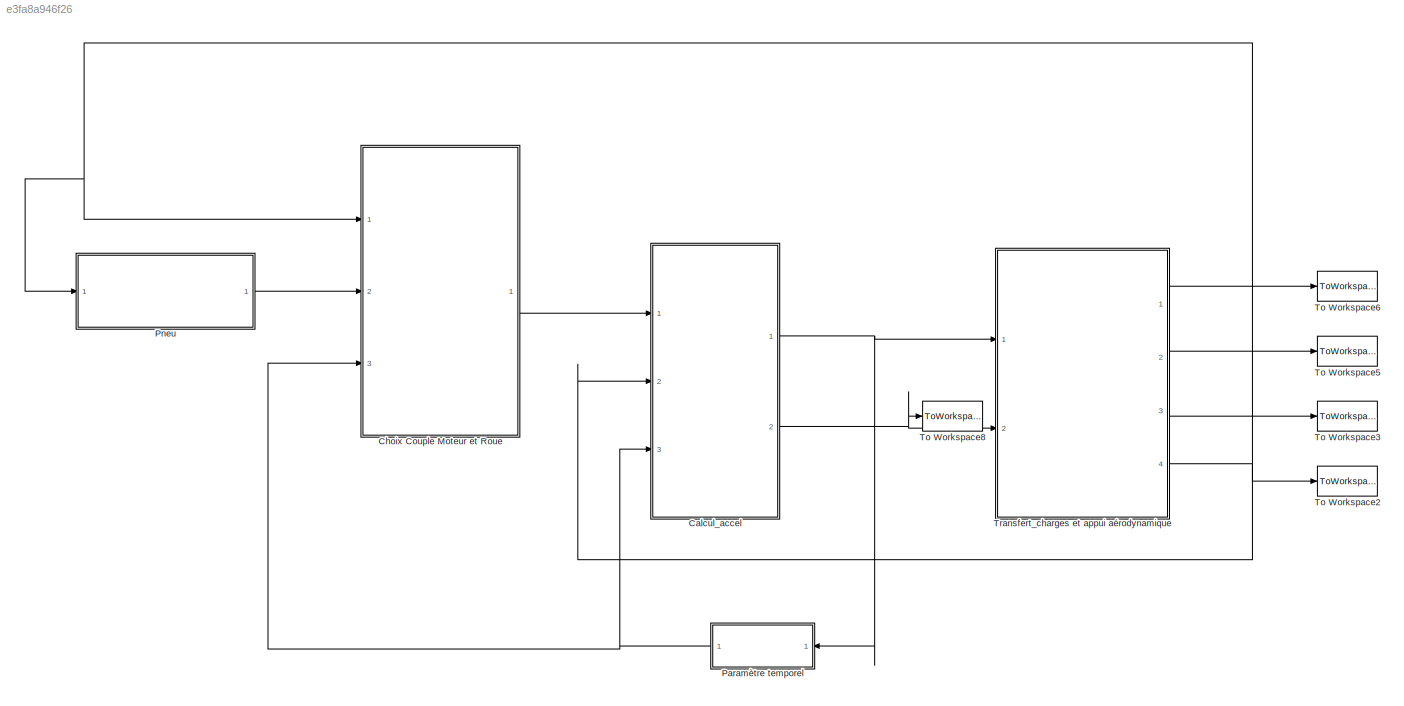
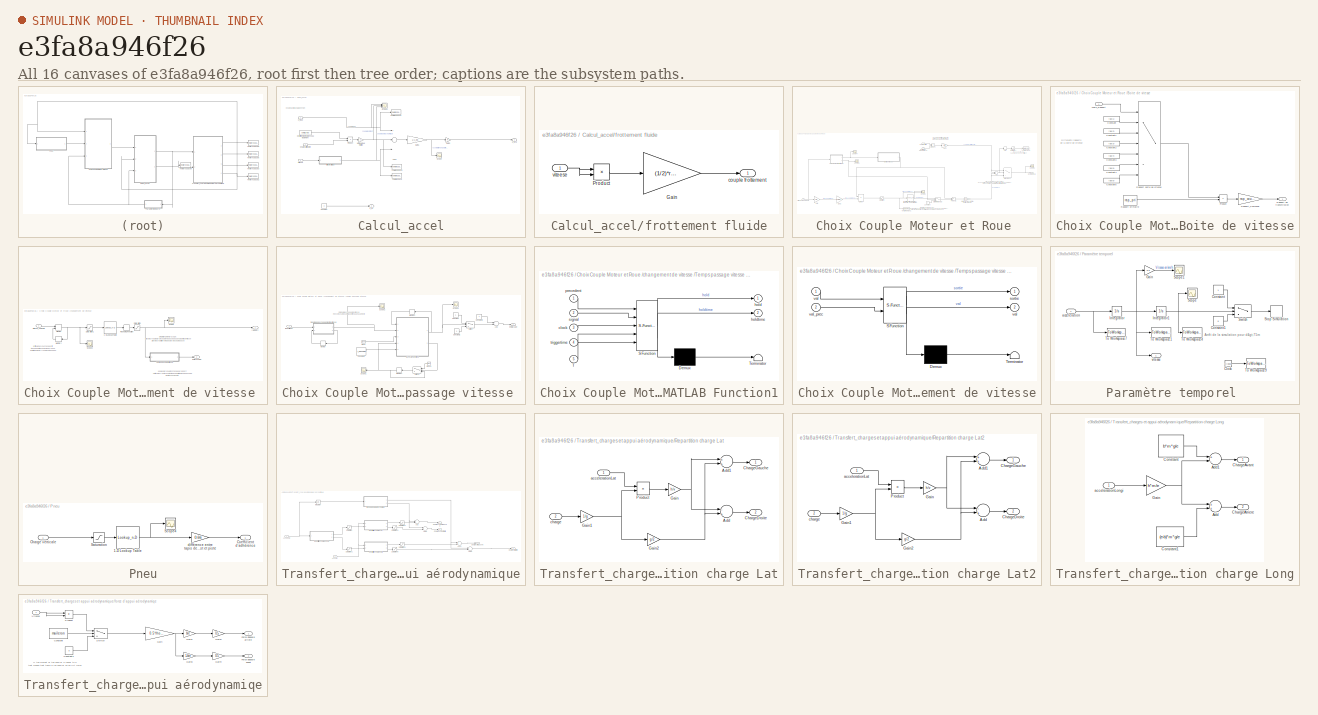
[diagram: thumbnail index - all 16 canvases of the model, root first then tree order]
MODEL slx_e3fa8a946f26
KIND model
CONFIG AbsTol = auto
CONFIG FixedStep = auto
CONFIG MaxStep = 0.01
CONFIG MinStep = auto
CONFIG RelTol = 1e-3
CONFIG SampleTimeConstraint = Unconstrained
CONFIG Solver = ode45
CONFIG SolverMode = Auto
CONFIG SolverName = ode45
CONFIG StartTime = 0.0
CONFIG StopTime = 7
BLOCK [SubSystem] Calcul_accel
  Ports = [3, 2]
  RequestExecContextInheritance = off
  Variant = off
BLOCK [Sum] Calcul_accel/Add3
  InputSameDT = off
  Inputs = +--
  OutDataTypeStr = Inherit: Inherit via internal rule
  Ports = [3, 1]
  SaturateOnIntegerOverflow = off
BLOCK [Inport] Calcul_accel/C_roue
  IconDisplay = Port number
BLOCK [Inport] Calcul_accel/Charge Arriere droit 
  IconDisplay = Port number
  Port = 2
BLOCK [Constant] Calcul_accel/Coefficient de résistance au roulement
  Value = coeff_roul
BLOCK [Constant] Calcul_accel/Constant
  Value = 0
BLOCK [Gain] Calcul_accel/Gain5
  Gain = R
  OutDataTypeStr = Inherit: Inherit via internal rule
  ParamDataTypeStr = Inherit: Inherit via internal rule
  SaturateOnIntegerOverflow = off
BLOCK [Gain] Calcul_accel/Gain6
  Gain = 1/J_eq
  OutDataTypeStr = Inherit: Inherit via internal rule
  ParamDataTypeStr = Inherit: Inherit via internal rule
  SaturateOnIntegerOverflow = off
BLOCK [Gain] Calcul_accel/Nbre de roue motrice
  Gain = 2
  OutDataTypeStr = Inherit: Inherit via internal rule
  ParamDataTypeStr = Inherit: Inherit via internal rule
  SaturateOnIntegerOverflow = off
BLOCK [Product] Calcul_accel/Product
  InputSameDT = off
  Inputs = **
  OutDataTypeStr = Inherit: Inherit via internal rule
  Ports = [2, 1]
  RndMeth = Floor
  SaturateOnIntegerOverflow = off
BLOCK [Scope] Calcul_accel/Scope
  Ports = [1]
  ScopeSpecificationString = Simulink.scopes.TimeScopeBlockCfg('CurrentConfiguration', extmgr.ConfigurationSet(extmgr.Configuration('Core','General UI',true),extmgr.Configuration('Core','Source UI',true),extmgr.Configuration('Sources','WiredSimulink',true),extmgr.Configuration('Visuals','Time Domain',true,'SerializedDisplays',{struct('MinYLimReal','-8.00356','MaxYLimReal','31.49873','YLabelReal','','MinYLimMag','0.00000','Max...<+1358ch>
BLOCK [Scope] Calcul_accel/Scope2
  NumInputPorts = 3
  Ports = [3]
  ScopeSpecificationString = Simulink.scopes.TimeScopeBlockCfg('CurrentConfiguration', extmgr.ConfigurationSet(extmgr.Configuration('Core','General UI',true),extmgr.Configuration('Core','Source UI',true),extmgr.Configuration('Sources','WiredSimulink',true,'DataLoggingVariableName','ScopeData7'),extmgr.Configuration('Visuals','Time Domain',true,'SerializedDisplays',{struct('MinYLimReal','-80.06257','MaxYLimReal','720.56312','Y...<+1446ch>
BLOCK [ToWorkspace] Calcul_accel/To Workspace
  FixptAsFi = on
  MaxDataPoints = inf
  Ports = [1]
  SampleTime = -1
  Save2DSignal = 3-D array (concatenate along third dimension)
  SaveFormat = Timeseries
  VariableName = couple_frottement
BLOCK [ToWorkspace] Calcul_accel/To Workspace1
  FixptAsFi = on
  MaxDataPoints = inf
  Ports = [1]
  SampleTime = -1
  Save2DSignal = 3-D array (concatenate along third dimension)
  SaveFormat = Timeseries
  VariableName = couple_roue
BLOCK [ToWorkspace] Calcul_accel/To Workspace2
  FixptAsFi = on
  MaxDataPoints = inf
  Ports = [1]
  SampleTime = -1
  Save2DSignal = 3-D array (concatenate along third dimension)
  SaveFormat = Timeseries
  VariableName = couple_resistant
BLOCK [Outport] Calcul_accel/a_lat
  IconDisplay = Port number
  Port = 2
BLOCK [Outport] Calcul_accel/a_long
  IconDisplay = Port number
BLOCK [SubSystem] Calcul_accel/frottement fluide
  Ports = [1, 1]
  RequestExecContextInheritance = off
  Variant = off
BLOCK [Gain] Calcul_accel/frottement fluide/Gain
  Gain = (1/2)*rho*Cx*S*R
  OutDataTypeStr = Inherit: Inherit via internal rule
  ParamDataTypeStr = Inherit: Inherit via internal rule
  SaturateOnIntegerOverflow = off
BLOCK [Product] Calcul_accel/frottement fluide/Product
  InputSameDT = off
  OutDataTypeStr = Inherit: Inherit via internal rule
  Ports = [2, 1]
  RndMeth = Floor
  SaturateOnIntegerOverflow = off
BLOCK [Outport] Calcul_accel/frottement fluide/couple frottement
  IconDisplay = Port number
BLOCK [Inport] Calcul_accel/frottement fluide/viteese
  IconDisplay = Port number
BLOCK [Inport] Calcul_accel/vitesse
  IconDisplay = Port number
  Port = 3
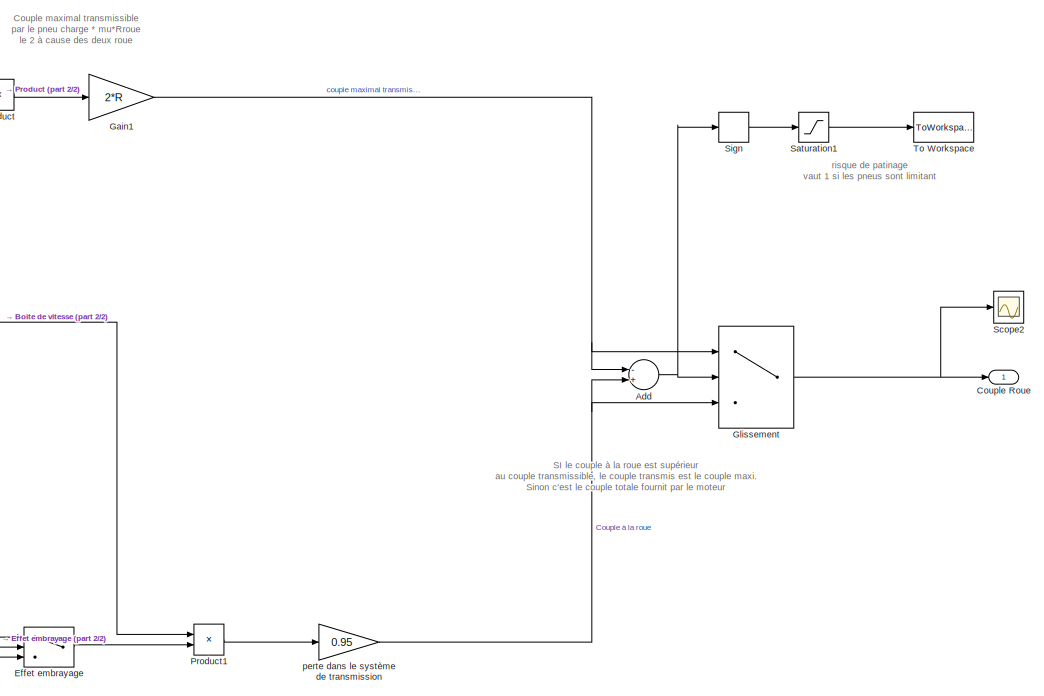
[diagram: Choix Couple Moteur et Roue  - part 1/2, right side, full height]
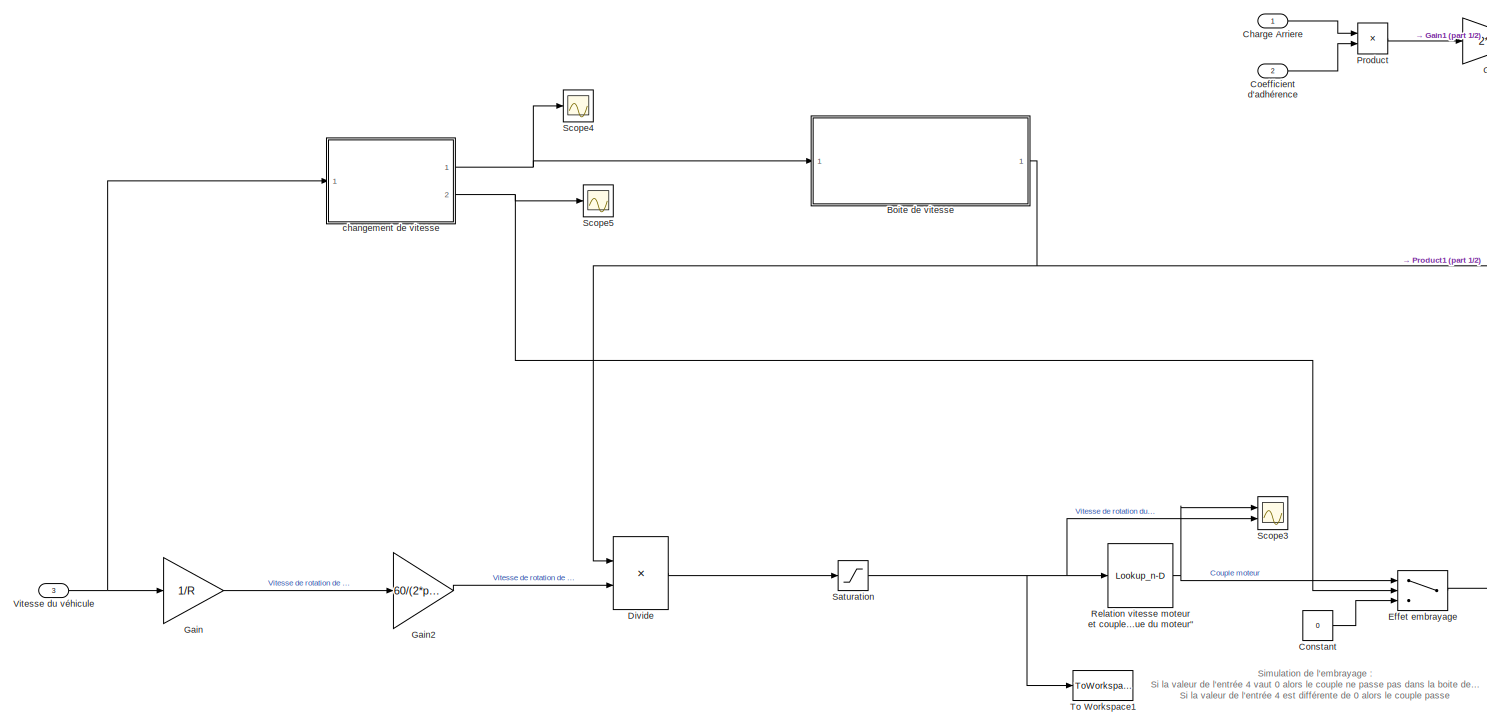
[diagram: Choix Couple Moteur et Roue  - part 2/2, left side, full height]
BLOCK [SubSystem] Choix Couple Moteur et Roue 
  Ports = [3, 1]
  RequestExecContextInheritance = off
  Variant = off
BLOCK [Sum] Choix Couple Moteur et Roue /Add
  InputSameDT = off
  Inputs = -+
  OutDataTypeStr = Inherit: Inherit via internal rule
  Ports = [2, 1]
  SaturateOnIntegerOverflow = off
BLOCK [SubSystem] Choix Couple Moteur et Roue /Boite de vitesse
  Ports = [1, 1]
  RequestExecContextInheritance = off
  Variant = off
BLOCK [Constant] Choix Couple Moteur et Roue /Boite de vitesse/Constant
  Value = rap(1)
BLOCK [Constant] Choix Couple Moteur et Roue /Boite de vitesse/Constant1
  Value = rap(2)
BLOCK [Constant] Choix Couple Moteur et Roue /Boite de vitesse/Constant2
  Value = rap(3)
BLOCK [Constant] Choix Couple Moteur et Roue /Boite de vitesse/Constant3
  Value = rap(4)
BLOCK [Constant] Choix Couple Moteur et Roue /Boite de vitesse/Constant4
  Value = rap(5)
BLOCK [Constant] Choix Couple Moteur et Roue /Boite de vitesse/Constant5
  Value = rap(6)
BLOCK [Product] Choix Couple Moteur et Roue /Boite de vitesse/Product
  InputSameDT = off
  OutDataTypeStr = Inherit: Inherit via internal rule
  Ports = [2, 1]
  RndMeth = Floor
  SaturateOnIntegerOverflow = off
BLOCK [MultiPortSwitch] Choix Couple Moteur et Roue /Boite de vitesse/Rapport boite de vitesse
  InputSameDT = off
  Inputs = 6
  Ports = [7, 1]
  SaturateOnIntegerOverflow = off
BLOCK [Outport] Choix Couple Moteur et Roue /Boite de vitesse/Rapport de transmission
  IconDisplay = Port number
BLOCK [Constant] Choix Couple Moteur et Roue /Boite de vitesse/Rapport primaire
  Value = rap_pri
BLOCK [Gain] Choix Couple Moteur et Roue /Boite de vitesse/Rapport_Couronne
  Gain = rap_couronne
  OutDataTypeStr = Inherit: Inherit via internal rule
  ParamDataTypeStr = Inherit: Inherit via internal rule
  SaturateOnIntegerOverflow = off
BLOCK [Inport] Choix Couple Moteur et Roue /Boite de vitesse/choix_Rapport
  IconDisplay = Port number
BLOCK [Inport] Choix Couple Moteur et Roue /Charge Arriere
  IconDisplay = Port number
BLOCK [Inport] Choix Couple Moteur et Roue /Coefficient d'adhérence 
  IconDisplay = Port number
  Port = 2
BLOCK [Constant] Choix Couple Moteur et Roue /Constant
  Value = 0
BLOCK [Outport] Choix Couple Moteur et Roue /Couple Roue
  IconDisplay = Port number
BLOCK [Product] Choix Couple Moteur et Roue /Divide
  InputSameDT = off
  Inputs = /*
  OutDataTypeStr = Inherit: Inherit via internal rule
  Ports = [2, 1]
  RndMeth = Floor
  SaturateOnIntegerOverflow = off
BLOCK [Switch] Choix Couple Moteur et Roue /Effet embrayage
  Criteria = u2 > Threshold
  InputSameDT = off
  SaturateOnIntegerOverflow = off
BLOCK [Gain] Choix Couple Moteur et Roue /Gain
  Gain = 1/R
  OutDataTypeStr = Inherit: Inherit via internal rule
  ParamDataTypeStr = Inherit: Inherit via internal rule
  SaturateOnIntegerOverflow = off
BLOCK [Gain] Choix Couple Moteur et Roue /Gain1
  Gain = 2*R
  OutDataTypeStr = Inherit: Inherit via internal rule
  ParamDataTypeStr = Inherit: Inherit via internal rule
  SaturateOnIntegerOverflow = off
BLOCK [Gain] Choix Couple Moteur et Roue /Gain2
  Gain = 60/(2*pi)
  OutDataTypeStr = Inherit: Inherit via internal rule
  ParamDataTypeStr = Inherit: Inherit via internal rule
  SaturateOnIntegerOverflow = off
BLOCK [Switch] Choix Couple Moteur et Roue /Glissement
  Criteria = u2 > Threshold
  InputSameDT = off
  SaturateOnIntegerOverflow = off
BLOCK [Product] Choix Couple Moteur et Roue /Product
  InputSameDT = off
  OutDataTypeStr = Inherit: Inherit via internal rule
  Ports = [2, 1]
  RndMeth = Floor
  SaturateOnIntegerOverflow = off
BLOCK [Product] Choix Couple Moteur et Roue /Product1
  InputSameDT = off
  Inputs = /*
  OutDataTypeStr = Inherit: Inherit via internal rule
  Ports = [2, 1]
  RndMeth = Floor
  SaturateOnIntegerOverflow = off
BLOCK [Lookup_n-D] Choix Couple Moteur et Roue /Relation vitesse moteur et couple moteur "Caractéristique du moteur"
  BreakpointsForDimension1 = regime
  InternalRulePriority = Speed
  NumberOfTableDimensions = 1
  Ports = [1, 1]
  RndMeth = Simplest
  Table = C_mot
BLOCK [Saturate] Choix Couple Moteur et Roue /Saturation
  InputPortMap = u0
  LowerLimit = reg_patinage
  Ports = [1, 1]
  UpperLimit = reg_rupteur
BLOCK [Saturate] Choix Couple Moteur et Roue /Saturation1
  InputPortMap = u0
  LowerLimit = 0
  Ports = [1, 1]
  UpperLimit = 1
BLOCK [Scope] Choix Couple Moteur et Roue /Scope2
  Ports = [1]
  ScopeSpecificationString = Simulink.scopes.TimeScopeBlockCfg('CurrentConfiguration', extmgr.ConfigurationSet(extmgr.Configuration('Core','General UI',true),extmgr.Configuration('Core','Source UI',true),extmgr.Configuration('Sources','WiredSimulink',true,'DataLoggingVariableName','ScopeData2'),extmgr.Configuration('Visuals','Time Domain',true,'SerializedDisplays',{struct('MinYLimReal','-80.06257','MaxYLimReal','720.56312','Y...<+1411ch>
BLOCK [Scope] Choix Couple Moteur et Roue /Scope3
  NumInputPorts = 2
  Ports = [2]
  ScopeSpecificationString = Simulink.scopes.TimeScopeBlockCfg('CurrentConfiguration', extmgr.ConfigurationSet(extmgr.Configuration('Core','General UI',true),extmgr.Configuration('Core','Source UI',true),extmgr.Configuration('Sources','WiredSimulink',true,'DataLoggingVariableName','ScopeData4'),extmgr.Configuration('Visuals','Time Domain',true,'SerializedDisplays',{struct('MinYLimReal','-1532.31614','MaxYLimReal','14184.22096...<+1460ch>
BLOCK [Scope] Choix Couple Moteur et Roue /Scope4
  Ports = [1]
  ScopeSpecificationString = Simulink.scopes.TimeScopeBlockCfg('CurrentConfiguration', extmgr.ConfigurationSet(extmgr.Configuration('Core','General UI',true),extmgr.Configuration('Core','Source UI',true),extmgr.Configuration('Sources','WiredSimulink',true,'DataLoggingVariableName','ScopeData1'),extmgr.Configuration('Visuals','Time Domain',true,'SerializedDisplays',{struct('MinYLimReal','0.625','MaxYLimReal','4.375','YLabelRea...<+1365ch>
BLOCK [Scope] Choix Couple Moteur et Roue /Scope5
  Ports = [1]
  ScopeSpecificationString = Simulink.scopes.TimeScopeBlockCfg('CurrentConfiguration', extmgr.ConfigurationSet(extmgr.Configuration('Core','General UI',true),extmgr.Configuration('Core','Source UI',true),extmgr.Configuration('Sources','WiredSimulink',true,'DataLoggingVariableName','ScopeData2'),extmgr.Configuration('Visuals','Time Domain',true,'SerializedDisplays',{struct('MinYLimReal','-0.125','MaxYLimReal','1.125','YLabelRe...<+1371ch>
BLOCK [Signum] Choix Couple Moteur et Roue /Sign
BLOCK [ToWorkspace] Choix Couple Moteur et Roue /To Workspace
  FixptAsFi = on
  MaxDataPoints = inf
  Ports = [1]
  SampleTime = -1
  Save2DSignal = 3-D array (concatenate along third dimension)
  SaveFormat = Timeseries
  VariableName = patinage
BLOCK [ToWorkspace] Choix Couple Moteur et Roue /To Workspace1
  FixptAsFi = on
  MaxDataPoints = inf
  Ports = [1]
  SampleTime = -1
  Save2DSignal = 3-D array (concatenate along third dimension)
  SaveFormat = Timeseries
  VariableName = regime_moteur
BLOCK [Inport] Choix Couple Moteur et Roue /Vitesse du véhicule
  IconDisplay = Port number
  Port = 3
BLOCK [SubSystem] Choix Couple Moteur et Roue /changement de vitesse 
  Ports = [1, 2]
  RequestExecContextInheritance = off
  Variant = off
BLOCK [Lookup_n-D] Choix Couple Moteur et Roue /changement de vitesse /1-D Lookup Table
  BreakpointsForDimension1 = v_passage
  InternalRulePriority = Speed
  NumberOfTableDimensions = 1
  Ports = [1, 1]
  RndMeth = Simplest
  Table = rapport
BLOCK [Memory] Choix Couple Moteur et Roue /changement de vitesse /Memory
BLOCK [MinMax] Choix Couple Moteur et Roue /changement de vitesse /MinMax
  Function = max
  InputSameDT = off
  Inputs = 2
  Ports = [2, 1]
  SaturateOnIntegerOverflow = off
BLOCK [Rounding] Choix Couple Moteur et Roue /changement de vitesse /Rounding Function
BLOCK [Saturate] Choix Couple Moteur et Roue /changement de vitesse /Saturation
  InputPortMap = u0
  LowerLimit = 1
  Ports = [1, 1]
  UpperLimit = rapport_max
BLOCK [Saturate] Choix Couple Moteur et Roue /changement de vitesse /Saturation1
  InputPortMap = u0
  LowerLimit = 0
  Ports = [1, 1]
  UpperLimit = inf
BLOCK [Scope] Choix Couple Moteur et Roue /changement de vitesse /Scope
  Ports = [1]
  ScopeSpecificationString = Simulink.scopes.TimeScopeBlockCfg('CurrentConfiguration', extmgr.ConfigurationSet(extmgr.Configuration('Core','General UI',true),extmgr.Configuration('Core','Source UI',true),extmgr.Configuration('Sources','WiredSimulink',true,'DataLoggingVariableName','ScopeData1'),extmgr.Configuration('Visuals','Time Domain',true,'SerializedDisplays',{struct('MinYLimReal','0.625','MaxYLimReal','4.375','YLabelRea...<+1382ch>
BLOCK [Scope] Choix Couple Moteur et Roue /changement de vitesse /Scope2
  Ports = [1]
  ScopeSpecificationString = Simulink.scopes.TimeScopeBlockCfg('CurrentConfiguration', extmgr.ConfigurationSet(extmgr.Configuration('Core','General UI',true),extmgr.Configuration('Core','Source UI',true),extmgr.Configuration('Sources','WiredSimulink',true,'DataLoggingVariableName','ScopeData5'),extmgr.Configuration('Visuals','Time Domain',true,'SerializedDisplays',{struct('MinYLimReal','-4.41317','MaxYLimReal','39.71854','YLa...<+1413ch>
BLOCK [SubSystem] Choix Couple Moteur et Roue /changement de vitesse /Temps passage vitesse 
  Ports = [1, 1]
  RequestExecContextInheritance = off
  Variant = off
BLOCK [Sum] Choix Couple Moteur et Roue /changement de vitesse /Temps passage vitesse /Add
  InputSameDT = off
  Inputs = +-
  OutDataTypeStr = Inherit: Inherit via internal rule
  Ports = [2, 1]
  SaturateOnIntegerOverflow = off
BLOCK [Clock] Choix Couple Moteur et Roue /changement de vitesse /Temps passage vitesse /Clock
BLOCK [Clock] Choix Couple Moteur et Roue /changement de vitesse /Temps passage vitesse /Clock1
BLOCK [Constant] Choix Couple Moteur et Roue /changement de vitesse /Temps passage vitesse /Constant
BLOCK [Constant] Choix Couple Moteur et Roue /changement de vitesse /Temps passage vitesse /Constant1
  Value = 0
BLOCK [Constant] Choix Couple Moteur et Roue /changement de vitesse /Temps passage vitesse /Constant2
  Value = t_passage
BLOCK [Constant] Choix Couple Moteur et Roue /changement de vitesse /Temps passage vitesse /Constant3
BLOCK [SubSystem] Choix Couple Moteur et Roue /changement de vitesse /Temps passage vitesse /MATLAB Function1
  ErrorFcn = Stateflow.Translate.translate
  PermitHierarchicalResolution = ExplicitOnly
  Ports = [5, 2]
  RequestExecContextInheritance = off
  SFBlockType = MATLAB Function
  TreatAsAtomicUnit = on
  Variant = off
BLOCK [Demux] Choix Couple Moteur et Roue /changement de vitesse /Temps passage vitesse /MATLAB Function1/ Demux 
  Outputs = 1
  Ports = [1, 1]
BLOCK [S-Function] Choix Couple Moteur et Roue /changement de vitesse /Temps passage vitesse /MATLAB Function1/ SFunction 
  EnableBusSupport = on
  FunctionName = sf_sfun
  PortCounts = [5 3]
  Ports = [5, 3]
  SFunctionDeploymentMode = off
  Tag = Stateflow S-Function Accel_model 1
BLOCK [Terminator] Choix Couple Moteur et Roue /changement de vitesse /Temps passage vitesse /MATLAB Function1/ Terminator 
BLOCK [Inport] Choix Couple Moteur et Roue /changement de vitesse /Temps passage vitesse /MATLAB Function1/T
  IconDisplay = Port number
  Port = 5
BLOCK [Inport] Choix Couple Moteur et Roue /changement de vitesse /Temps passage vitesse /MATLAB Function1/clock
  IconDisplay = Port number
  Port = 3
BLOCK [Outport] Choix Couple Moteur et Roue /changement de vitesse /Temps passage vitesse /MATLAB Function1/hold
  IconDisplay = Port number
BLOCK [Outport] Choix Couple Moteur et Roue /changement de vitesse /Temps passage vitesse /MATLAB Function1/holdtime
  IconDisplay = Port number
  Port = 2
BLOCK [Inport] Choix Couple Moteur et Roue /changement de vitesse /Temps passage vitesse /MATLAB Function1/precedent
  IconDisplay = Port number
BLOCK [Inport] Choix Couple Moteur et Roue /changement de vitesse /Temps passage vitesse /MATLAB Function1/signal
  IconDisplay = Port number
  Port = 2
BLOCK [Inport] Choix Couple Moteur et Roue /changement de vitesse /Temps passage vitesse /MATLAB Function1/triggertime
  IconDisplay = Port number
  Port = 4
BLOCK [Memory] Choix Couple Moteur et Roue /changement de vitesse /Temps passage vitesse /Memory
  X0 = 1
BLOCK [Memory] Choix Couple Moteur et Roue /changement de vitesse /Temps passage vitesse /Memory1
BLOCK [Memory] Choix Couple Moteur et Roue /changement de vitesse /Temps passage vitesse /Memory2
BLOCK [SubSystem] Choix Couple Moteur et Roue /changement de vitesse /Temps passage vitesse /Reperage des changement de vitesse
  ErrorFcn = Stateflow.Translate.translate
  PermitHierarchicalResolution = ExplicitOnly
  Ports = [2, 2]
  RequestExecContextInheritance = off
  SFBlockType = MATLAB Function
  TreatAsAtomicUnit = on
  Variant = off
BLOCK [Demux] Choix Couple Moteur et Roue /changement de vitesse /Temps passage vitesse /Reperage des changement de vitesse/ Demux 
  Outputs = 1
  Ports = [1, 1]
BLOCK [S-Function] Choix Couple Moteur et Roue /changement de vitesse /Temps passage vitesse /Reperage des changement de vitesse/ SFunction 
  EnableBusSupport = on
  FunctionName = sf_sfun
  PortCounts = [2 3]
  Ports = [2, 3]
  SFunctionDeploymentMode = off
  Tag = Stateflow S-Function Accel_model 2
BLOCK [Terminator] Choix Couple Moteur et Roue /changement de vitesse /Temps passage vitesse /Reperage des changement de vitesse/ Terminator 
BLOCK [Outport] Choix Couple Moteur et Roue /changement de vitesse /Temps passage vitesse /Reperage des changement de vitesse/sortie
  IconDisplay = Port number
BLOCK [Outport] Choix Couple Moteur et Roue /changement de vitesse /Temps passage vitesse /Reperage des changement de vitesse/val
  IconDisplay = Port number
  Port = 2
BLOCK [Inport] Choix Couple Moteur et Roue /changement de vitesse /Temps passage vitesse /Reperage des changement de vitesse/val 
  IconDisplay = Port number
BLOCK [Inport] Choix Couple Moteur et Roue /changement de vitesse /Temps passage vitesse /Reperage des changement de vitesse/val_prec
  IconDisplay = Port number
  Port = 2
BLOCK [Scope] Choix Couple Moteur et Roue /changement de vitesse /Temps passage vitesse /Scope1
  Ports = [1]
  ScopeSpecificationString = Simulink.scopes.TimeScopeBlockCfg('CurrentConfiguration', extmgr.ConfigurationSet(extmgr.Configuration('Core','General UI',true),extmgr.Configuration('Core','Source UI',true),extmgr.Configuration('Sources','WiredSimulink',true,'DataLoggingVariableName','ScopeData1'),extmgr.Configuration('Visuals','Time Domain',true,'SerializedDisplays',{struct('MinYLimReal','-0.375','MaxYLimReal','3.375','YLabelRe...<+1387ch>
BLOCK [Scope] Choix Couple Moteur et Roue /changement de vitesse /Temps passage vitesse /Scope2
  Ports = [1]
  ScopeSpecificationString = Simulink.scopes.TimeScopeBlockCfg('CurrentConfiguration', extmgr.ConfigurationSet(extmgr.Configuration('Core','General UI',true),extmgr.Configuration('Core','Source UI',true),extmgr.Configuration('Sources','WiredSimulink',true,'DataLoggingVariableName','ScopeData2'),extmgr.Configuration('Visuals','Time Domain',true,'SerializedDisplays',{struct('MinYLimReal','-0.125','MaxYLimReal','1.125','YLabelRe...<+1389ch>
BLOCK [Scope] Choix Couple Moteur et Roue /changement de vitesse /Temps passage vitesse /Scope3
  Ports = [1]
  ScopeSpecificationString = Simulink.scopes.TimeScopeBlockCfg('CurrentConfiguration', extmgr.ConfigurationSet(extmgr.Configuration('Core','General UI',true),extmgr.Configuration('Core','Source UI',true),extmgr.Configuration('Sources','WiredSimulink',true,'DataLoggingVariableName','ScopeData3'),extmgr.Configuration('Visuals','Time Domain',true,'SerializedDisplays',{struct('MinYLimReal','-0.125','MaxYLimReal','1.125','YLabelRe...<+1368ch>
BLOCK [Switch] Choix Couple Moteur et Roue /changement de vitesse /Temps passage vitesse /Switch
  InputSameDT = off
  SaturateOnIntegerOverflow = off
  Threshold = 1
BLOCK [Switch] Choix Couple Moteur et Roue /changement de vitesse /Temps passage vitesse /Switch1
  InputSameDT = off
  SaturateOnIntegerOverflow = off
  Threshold = 1
BLOCK [Outport] Choix Couple Moteur et Roue /changement de vitesse /Temps passage vitesse /embrayage
  IconDisplay = Port number
BLOCK [Inport] Choix Couple Moteur et Roue /changement de vitesse /Temps passage vitesse /rapport ideal
  IconDisplay = Port number
BLOCK [Outport] Choix Couple Moteur et Roue /changement de vitesse /embrayage 
  IconDisplay = Port number
  Port = 2
BLOCK [Outport] Choix Couple Moteur et Roue /changement de vitesse /rapport
  IconDisplay = Port number
BLOCK [Inport] Choix Couple Moteur et Roue /changement de vitesse /vitesse_vehicule 
  IconDisplay = Port number
BLOCK [Gain] Choix Couple Moteur et Roue /perte dans le système de transmission
  Gain = 0.95
  OutDataTypeStr = Inherit: Inherit via internal rule
  ParamDataTypeStr = Inherit: Inherit via internal rule
  SaturateOnIntegerOverflow = off
BLOCK [SubSystem] Paramètre temporel 
  Ports = [1, 1]
  RequestExecContextInheritance = off
  Variant = off
BLOCK [Clock] Paramètre temporel /Clock
BLOCK [Constant] Paramètre temporel /Constant
BLOCK [Constant] Paramètre temporel /Constant1
  Value = 0
BLOCK [Gain] Paramètre temporel /Gain
  Gain = 3.6
  OutDataTypeStr = Inherit: Inherit via internal rule
  ParamDataTypeStr = Inherit: Inherit via internal rule
  SaturateOnIntegerOverflow = off
BLOCK [Integrator] Paramètre temporel /Integrator
  InitialCondition = vitesse_initiale
  Ports = [1, 1]
BLOCK [Integrator] Paramètre temporel /Integrator1
  InitialCondition = position_initale
  Ports = [1, 1]
BLOCK [Scope] Paramètre temporel /Scope
  Ports = [1]
  ScopeSpecificationString = Simulink.scopes.TimeScopeBlockCfg('CurrentConfiguration', extmgr.ConfigurationSet(extmgr.Configuration('Core','General UI',true),extmgr.Configuration('Core','Source UI',true),extmgr.Configuration('Sources','WiredSimulink',true,'DataLoggingVariableName','ScopeData1'),extmgr.Configuration('Visuals','Time Domain',true,'SerializedDisplays',{struct('MinYLimReal','-9.375','MaxYLimReal','84.375','YLabelR...<+1362ch>
BLOCK [Scope] Paramètre temporel /Scope1
  Ports = [1]
  ScopeSpecificationString = Simulink.scopes.TimeScopeBlockCfg('CurrentConfiguration', extmgr.ConfigurationSet(extmgr.Configuration('Core','General UI',true),extmgr.Configuration('Core','Source UI',true),extmgr.Configuration('Sources','WiredSimulink',true,'DataLoggingVariableName','ScopeData2'),extmgr.Configuration('Visuals','Time Domain',true,'SerializedDisplays',{struct('MinYLimReal','-13.13589','MaxYLimReal','118.223','YLa...<+1377ch>
BLOCK [Stop] Paramètre temporel /Stop Simulation
BLOCK [Switch] Paramètre temporel /Switch
  Criteria = u2 > Threshold
  InputSameDT = off
  SaturateOnIntegerOverflow = off
  Threshold = 75
BLOCK [ToWorkspace] Paramètre temporel /To Workspace1
  FixptAsFi = on
  MaxDataPoints = inf
  Ports = [1]
  SampleTime = -1
  Save2DSignal = 3-D array (concatenate along third dimension)
  SaveFormat = Timeseries
  VariableName = Vitesse
BLOCK [ToWorkspace] Paramètre temporel /To Workspace4
  FixptAsFi = on
  MaxDataPoints = inf
  Ports = [1]
  SampleTime = -1
  Save2DSignal = 3-D array (concatenate along third dimension)
  SaveFormat = Timeseries
  VariableName = Distance
BLOCK [ToWorkspace] Paramètre temporel /To Workspace7
  FixptAsFi = on
  MaxDataPoints = inf
  Ports = [1]
  SampleTime = -1
  Save2DSignal = 3-D array (concatenate along third dimension)
  SaveFormat = Timeseries
  VariableName = AccLong
BLOCK [ToWorkspace] Paramètre temporel /To Workspace9
  FixptAsFi = on
  MaxDataPoints = inf
  Ports = [1]
  SampleTime = -1
  Save2DSignal = 3-D array (concatenate along third dimension)
  VariableName = time
BLOCK [Inport] Paramètre temporel /acceleration
  IconDisplay = Port number
BLOCK [Outport] Paramètre temporel /vitesse 
  IconDisplay = Port number
BLOCK [SubSystem] Pneu
  Ports = [1, 1]
  RequestExecContextInheritance = off
  Variant = off
BLOCK [Lookup_n-D] Pneu/1-D Lookup Table
  BreakpointsForDimension1 = ChargePneu
  InternalRulePriority = Speed
  NumberOfTableDimensions = 1
  Ports = [1, 1]
  RndMeth = Simplest
  Table = MuLong
BLOCK [Inport] Pneu/Charge verticale
  IconDisplay = Port number
BLOCK [Outport] Pneu/Coefficient d'adhérence
  IconDisplay = Port number
BLOCK [Saturate] Pneu/Saturation
  InputPortMap = u0
  LowerLimit = charge_min
  Ports = [1, 1]
  UpperLimit = charge_max
BLOCK [Scope] Pneu/Scope4
  Ports = [1]
  ScopeSpecificationString = Simulink.scopes.TimeScopeBlockCfg('CurrentConfiguration', extmgr.ConfigurationSet(extmgr.Configuration('Core','General UI',true),extmgr.Configuration('Core','Source UI',true),extmgr.Configuration('Sources','WiredSimulink',true,'DataLoggingVariableName','ScopeData3'),extmgr.Configuration('Visuals','Time Domain',true,'SerializedDisplays',{struct('MinYLimReal','2.44269','MaxYLimReal','2.59303','YLabe...<+1373ch>
BLOCK [Gain] Pneu/différence entre tapis de test et piste
  Gain = 0.66
  OutDataTypeStr = Inherit: Inherit via internal rule
  ParamDataTypeStr = Inherit: Inherit via internal rule
  SaturateOnIntegerOverflow = off
BLOCK [ToWorkspace] To Workspace2
  FixptAsFi = on
  MaxDataPoints = inf
  Ports = [1]
  SampleTime = -1
  Save2DSignal = 3-D array (concatenate along third dimension)
  SaveFormat = Timeseries
  VariableName = ChargeArrDroit
BLOCK [ToWorkspace] To Workspace3
  FixptAsFi = on
  MaxDataPoints = inf
  Ports = [1]
  SampleTime = -1
  Save2DSignal = 3-D array (concatenate along third dimension)
  SaveFormat = Timeseries
  VariableName = ChargeArrGauche
BLOCK [ToWorkspace] To Workspace5
  FixptAsFi = on
  MaxDataPoints = inf
  Ports = [1]
  SampleTime = -1
  Save2DSignal = 3-D array (concatenate along third dimension)
  SaveFormat = Timeseries
  VariableName = ChargeAvantDroit
BLOCK [ToWorkspace] To Workspace6
  FixptAsFi = on
  MaxDataPoints = inf
  Ports = [1]
  SampleTime = -1
  Save2DSignal = 3-D array (concatenate along third dimension)
  SaveFormat = Timeseries
  VariableName = ChargeAvantGauche
BLOCK [ToWorkspace] To Workspace8
  FixptAsFi = on
  MaxDataPoints = inf
  Ports = [1]
  SampleTime = -1
  Save2DSignal = 3-D array (concatenate along third dimension)
  SaveFormat = Timeseries
  VariableName = AccLat
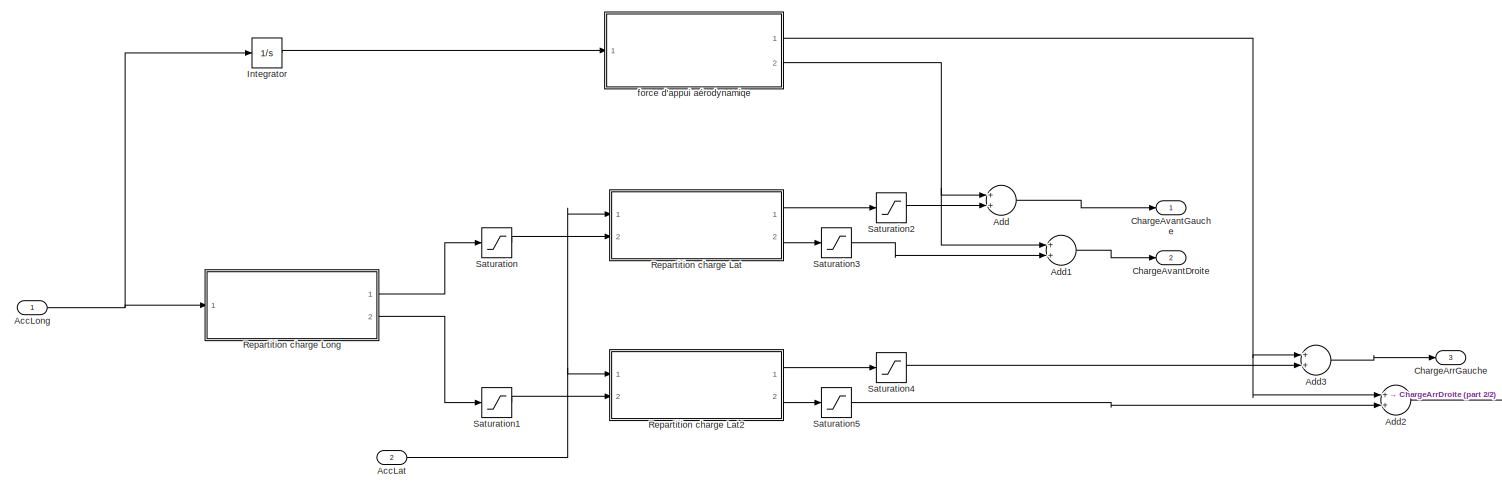
[diagram: Transfert_charges et appui aérodynamique - part 1/2, most of the canvas]
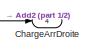
[diagram: Transfert_charges et appui aérodynamique - part 2/2, bottom right region]
BLOCK [SubSystem] Transfert_charges et appui aérodynamique
  Ports = [2, 4]
  RequestExecContextInheritance = off
  Variant = off
BLOCK [Inport] Transfert_charges et appui aérodynamique/AccLat
  IconDisplay = Port number
  Port = 2
BLOCK [Inport] Transfert_charges et appui aérodynamique/AccLong
  IconDisplay = Port number
BLOCK [Sum] Transfert_charges et appui aérodynamique/Add
  InputSameDT = off
  OutDataTypeStr = Inherit: Inherit via internal rule
  Ports = [2, 1]
  SaturateOnIntegerOverflow = off
BLOCK [Sum] Transfert_charges et appui aérodynamique/Add1
  InputSameDT = off
  OutDataTypeStr = Inherit: Inherit via internal rule
  Ports = [2, 1]
  SaturateOnIntegerOverflow = off
BLOCK [Sum] Transfert_charges et appui aérodynamique/Add2
  InputSameDT = off
  OutDataTypeStr = Inherit: Inherit via internal rule
  Ports = [2, 1]
  SaturateOnIntegerOverflow = off
BLOCK [Sum] Transfert_charges et appui aérodynamique/Add3
  InputSameDT = off
  OutDataTypeStr = Inherit: Inherit via internal rule
  Ports = [2, 1]
  SaturateOnIntegerOverflow = off
BLOCK [Outport] Transfert_charges et appui aérodynamique/ChargeArrDroite
  IconDisplay = Port number
  Port = 4
BLOCK [Outport] Transfert_charges et appui aérodynamique/ChargeArrGauche
  IconDisplay = Port number
  Port = 3
BLOCK [Outport] Transfert_charges et appui aérodynamique/ChargeAvantDroite
  IconDisplay = Port number
  Port = 2
BLOCK [Outport] Transfert_charges et appui aérodynamique/ChargeAvantGauche
  IconDisplay = Port number
BLOCK [Integrator] Transfert_charges et appui aérodynamique/Integrator
  InitialCondition = vitesse_initiale
  Ports = [1, 1]
BLOCK [SubSystem] Transfert_charges et appui aérodynamique/Repartition charge Lat
  Ports = [2, 2]
  RequestExecContextInheritance = off
  Variant = off
BLOCK [Sum] Transfert_charges et appui aérodynamique/Repartition charge Lat/Add
  InputSameDT = off
  Inputs = -+
  OutDataTypeStr = Inherit: Inherit via internal rule
  Ports = [2, 1]
  SaturateOnIntegerOverflow = off
BLOCK [Sum] Transfert_charges et appui aérodynamique/Repartition charge Lat/Add1
  InputSameDT = off
  OutDataTypeStr = Inherit: Inherit via internal rule
  Ports = [2, 1]
  SaturateOnIntegerOverflow = off
BLOCK [Outport] Transfert_charges et appui aérodynamique/Repartition charge Lat/ChargeDroite
  IconDisplay = Port number
  Port = 2
BLOCK [Outport] Transfert_charges et appui aérodynamique/Repartition charge Lat/ChargeGauche
  IconDisplay = Port number
BLOCK [Gain] Transfert_charges et appui aérodynamique/Repartition charge Lat/Gain
  Gain = h/v
  OutDataTypeStr = Inherit: Inherit via internal rule
  ParamDataTypeStr = Inherit: Inherit via internal rule
  SaturateOnIntegerOverflow = off
BLOCK [Gain] Transfert_charges et appui aérodynamique/Repartition charge Lat/Gain1
  Gain = 1/g
  OutDataTypeStr = Inherit: Inherit via internal rule
  ParamDataTypeStr = Inherit: Inherit via internal rule
  SaturateOnIntegerOverflow = off
BLOCK [Gain] Transfert_charges et appui aérodynamique/Repartition charge Lat/Gain2
  Gain = g/2
  OutDataTypeStr = Inherit: Inherit via internal rule
  ParamDataTypeStr = Inherit: Inherit via internal rule
  SaturateOnIntegerOverflow = off
BLOCK [Product] Transfert_charges et appui aérodynamique/Repartition charge Lat/Product
  InputSameDT = off
  OutDataTypeStr = Inherit: Inherit via internal rule
  Ports = [2, 1]
  RndMeth = Floor
  SaturateOnIntegerOverflow = off
BLOCK [Inport] Transfert_charges et appui aérodynamique/Repartition charge Lat/accelerationLat
  IconDisplay = Port number
BLOCK [Inport] Transfert_charges et appui aérodynamique/Repartition charge Lat/charge 
  IconDisplay = Port number
  Port = 2
BLOCK [SubSystem] Transfert_charges et appui aérodynamique/Repartition charge Lat2
  Ports = [2, 2]
  RequestExecContextInheritance = off
  Variant = off
BLOCK [Sum] Transfert_charges et appui aérodynamique/Repartition charge Lat2/Add
  InputSameDT = off
  Inputs = -+
  OutDataTypeStr = Inherit: Inherit via internal rule
  Ports = [2, 1]
  SaturateOnIntegerOverflow = off
BLOCK [Sum] Transfert_charges et appui aérodynamique/Repartition charge Lat2/Add1
  InputSameDT = off
  OutDataTypeStr = Inherit: Inherit via internal rule
  Ports = [2, 1]
  SaturateOnIntegerOverflow = off
BLOCK [Outport] Transfert_charges et appui aérodynamique/Repartition charge Lat2/ChargeDroite
  IconDisplay = Port number
  Port = 2
BLOCK [Outport] Transfert_charges et appui aérodynamique/Repartition charge Lat2/ChargeGauche
  IconDisplay = Port number
BLOCK [Gain] Transfert_charges et appui aérodynamique/Repartition charge Lat2/Gain
  Gain = h/v
  OutDataTypeStr = Inherit: Inherit via internal rule
  ParamDataTypeStr = Inherit: Inherit via internal rule
  SaturateOnIntegerOverflow = off
BLOCK [Gain] Transfert_charges et appui aérodynamique/Repartition charge Lat2/Gain1
  Gain = 1/g
  OutDataTypeStr = Inherit: Inherit via internal rule
  ParamDataTypeStr = Inherit: Inherit via internal rule
  SaturateOnIntegerOverflow = off
BLOCK [Gain] Transfert_charges et appui aérodynamique/Repartition charge Lat2/Gain2
  Gain = g/2
  OutDataTypeStr = Inherit: Inherit via internal rule
  ParamDataTypeStr = Inherit: Inherit via internal rule
  SaturateOnIntegerOverflow = off
BLOCK [Product] Transfert_charges et appui aérodynamique/Repartition charge Lat2/Product
  InputSameDT = off
  OutDataTypeStr = Inherit: Inherit via internal rule
  Ports = [2, 1]
  RndMeth = Floor
  SaturateOnIntegerOverflow = off
BLOCK [Inport] Transfert_charges et appui aérodynamique/Repartition charge Lat2/accelerationLat
  IconDisplay = Port number
BLOCK [Inport] Transfert_charges et appui aérodynamique/Repartition charge Lat2/charge 
  IconDisplay = Port number
  Port = 2
BLOCK [SubSystem] Transfert_charges et appui aérodynamique/Repartition charge Long
  Ports = [1, 2]
  RequestExecContextInheritance = off
  Variant = off
BLOCK [Sum] Transfert_charges et appui aérodynamique/Repartition charge Long/Add
  InputSameDT = off
  OutDataTypeStr = Inherit: Inherit via internal rule
  Ports = [2, 1]
  SaturateOnIntegerOverflow = off
BLOCK [Sum] Transfert_charges et appui aérodynamique/Repartition charge Long/Add1
  InputSameDT = off
  Inputs = +-
  OutDataTypeStr = Inherit: Inherit via internal rule
  Ports = [2, 1]
  SaturateOnIntegerOverflow = off
BLOCK [Outport] Transfert_charges et appui aérodynamique/Repartition charge Long/ChargeArriere
  IconDisplay = Port number
  Port = 2
BLOCK [Outport] Transfert_charges et appui aérodynamique/Repartition charge Long/ChargeAvant
  IconDisplay = Port number
BLOCK [Constant] Transfert_charges et appui aérodynamique/Repartition charge Long/Constant
  Value = b*m*g/e
BLOCK [Constant] Transfert_charges et appui aérodynamique/Repartition charge Long/Constant1
  Value = (e-b)*m*g/e
BLOCK [Gain] Transfert_charges et appui aérodynamique/Repartition charge Long/Gain
  Gain = h*m/e
  OutDataTypeStr = Inherit: Inherit via internal rule
  ParamDataTypeStr = Inherit: Inherit via internal rule
  SaturateOnIntegerOverflow = off
BLOCK [Inport] Transfert_charges et appui aérodynamique/Repartition charge Long/accelerationLongi
  IconDisplay = Port number
BLOCK [Saturate] Transfert_charges et appui aérodynamique/Saturation
  InputPortMap = u0
  LowerLimit = 0
  Ports = [1, 1]
  UpperLimit = inf
BLOCK [Saturate] Transfert_charges et appui aérodynamique/Saturation1
  InputPortMap = u0
  LowerLimit = 0
  Ports = [1, 1]
  UpperLimit = m*g
BLOCK [Saturate] Transfert_charges et appui aérodynamique/Saturation2
  InputPortMap = u0
  LowerLimit = 0
  Ports = [1, 1]
  UpperLimit = m*g
BLOCK [Saturate] Transfert_charges et appui aérodynamique/Saturation3
  InputPortMap = u0
  LowerLimit = 0
  Ports = [1, 1]
  UpperLimit = m*g
BLOCK [Saturate] Transfert_charges et appui aérodynamique/Saturation4
  InputPortMap = u0
  LowerLimit = 0
  Ports = [1, 1]
  UpperLimit = m*g
BLOCK [Saturate] Transfert_charges et appui aérodynamique/Saturation5
  InputPortMap = u0
  LowerLimit = 0
  Ports = [1, 1]
  UpperLimit = m*g
BLOCK [SubSystem] Transfert_charges et appui aérodynamique/force d'appui aérodynamiqe
  Ports = [1, 2]
  RequestExecContextInheritance = off
  Variant = off
BLOCK [Constant] Transfert_charges et appui aérodynamique/force d'appui aérodynamiqe/Constant
  Value = maileron
BLOCK [Constant] Transfert_charges et appui aérodynamique/force d'appui aérodynamiqe/Constant1
  Value = 0
BLOCK [Outport] Transfert_charges et appui aérodynamique/force d'appui aérodynamiqe/Force d'appuie arrière
  IconDisplay = Port number
BLOCK [Outport] Transfert_charges et appui aérodynamique/force d'appui aérodynamiqe/Force d'appuie avant
  IconDisplay = Port number
  Port = 2
BLOCK [Gain] Transfert_charges et appui aérodynamique/force d'appui aérodynamiqe/Gain
  Gain = 0.5*rho*Sproj*Cl
  OutDataTypeStr = Inherit: Inherit via internal rule
  ParamDataTypeStr = Inherit: Inherit via internal rule
  SaturateOnIntegerOverflow = off
BLOCK [Gain] Transfert_charges et appui aérodynamique/force d'appui aérodynamiqe/Gain1
  Gain = b/e
  OutDataTypeStr = Inherit: Inherit via internal rule
  ParamDataTypeStr = Inherit: Inherit via internal rule
  SaturateOnIntegerOverflow = off
BLOCK [Gain] Transfert_charges et appui aérodynamique/force d'appui aérodynamiqe/Gain2
  Gain = 0.5
  OutDataTypeStr = Inherit: Inherit via internal rule
  ParamDataTypeStr = Inherit: Inherit via internal rule
  SaturateOnIntegerOverflow = off
BLOCK [Gain] Transfert_charges et appui aérodynamique/force d'appui aérodynamiqe/Gain3
  Gain = 1-b/e
  OutDataTypeStr = Inherit: Inherit via internal rule
  ParamDataTypeStr = Inherit: Inherit via internal rule
  SaturateOnIntegerOverflow = off
BLOCK [Gain] Transfert_charges et appui aérodynamique/force d'appui aérodynamiqe/Gain4
  Gain = 0.5
  OutDataTypeStr = Inherit: Inherit via internal rule
  ParamDataTypeStr = Inherit: Inherit via internal rule
  SaturateOnIntegerOverflow = off
BLOCK [Product] Transfert_charges et appui aérodynamique/force d'appui aérodynamiqe/Product
  InputSameDT = off
  OutDataTypeStr = Inherit: Inherit via internal rule
  Ports = [2, 1]
  RndMeth = Floor
  SaturateOnIntegerOverflow = off
BLOCK [Switch] Transfert_charges et appui aérodynamique/force d'appui aérodynamiqe/Switch
  Criteria = u2 > Threshold
  InputSameDT = off
  SaturateOnIntegerOverflow = off
BLOCK [Inport] Transfert_charges et appui aérodynamique/force d'appui aérodynamiqe/Vitesse
  IconDisplay = Port number
ANNOTATION Calcul_accel: Couple appliqué à la rue en N.m
ANNOTATION Calcul_accel: couple roue
ANNOTATION Choix Couple Moteur et Roue : Couple maximal transmissible par le pneu charge * mu*Rroue le 2 à cause des deux roue
ANNOTATION Choix Couple Moteur et Roue : SI le couple à la roue est supérieur au couple transmissible, le couple transmis est le couple maxi. Sinon c'est le couple totale fournit par le moteur
ANNOTATION Choix Couple Moteur et Roue : Simulation de l'embrayage : Si la valeur de l'entrée 4 vaut 0 alors le couple ne passe pas dans la boite de vitesse Si la valeur de l'entrée 4 est différente de 0 alors le couple passe
ANNOTATION Choix Couple Moteur et Roue : risque de patinage vaut 1 si les pneus sont limitant
ANNOTATION Choix Couple Moteur et Roue /Boite de vitesse: Différents rapports de la boite de vitesse
ANNOTATION Choix Couple Moteur et Roue /changement de vitesse : Simulation de l'embrayage : Si la valeur vaut 0 alors le couple ne passe pas dans la boite de vitesse Si la valeur est différente de 0 alors le couple passe
ANNOTATION Choix Couple Moteur et Roue /changement de vitesse : artifice: when you change shift the speed of the vehicule décrease So with the memory you block the speed
ANNOTATION Choix Couple Moteur et Roue /changement de vitesse : égale à 0 lorsque l'on change de rapport Cette valeur reste constante pendant le temps de passage à la vitesse suivante.
ANNOTATION Choix Couple Moteur et Roue /changement de vitesse /Temps passage vitesse : On repère les changer de vitesse Renvoie un 1 lorsque le rapport engagé augmente
ANNOTATION Paramètre temporel : Arrêt de la simulation pour d>75m
ANNOTATION Transfert_charges et appui aérodynamique/force d'appui aérodynamiqe: if the weight of the spoiler is equal to 0 that means that there is no spoiler so no lift force
LINE Calcul_accel/Add3:1 -> Calcul_accel/Gain6:1
NET Calcul_accel/C_roue:1 -> Calcul_accel/Add3:1, Calcul_accel/Scope2:1, Calcul_accel/To Workspace1:1
LINE Calcul_accel/Charge Arriere droit :1 -> Calcul_accel/Product:2
LINE Calcul_accel/Coefficient de résistance au roulement:1 -> Calcul_accel/Product:1
LINE Calcul_accel/Constant:1 -> Calcul_accel/a_lat:1
LINE Calcul_accel/Gain5:1 -> Calcul_accel/a_long:1
NET Calcul_accel/Gain6:1 -> Calcul_accel/Gain5:1, Calcul_accel/Scope:1
NET Calcul_accel/Nbre de roue motrice:1 -> Calcul_accel/Add3:2, Calcul_accel/Scope2:2, Calcul_accel/To Workspace2:1
LINE Calcul_accel/Product:1 -> Calcul_accel/Nbre de roue motrice:1
LINE Calcul_accel/frottement fluide/Gain:1 -> Calcul_accel/frottement fluide/couple frottement:1
LINE Calcul_accel/frottement fluide/Product:1 -> Calcul_accel/frottement fluide/Gain:1
NET Calcul_accel/frottement fluide/viteese:1 -> Calcul_accel/frottement fluide/Product:1, Calcul_accel/frottement fluide/Product:2
NET Calcul_accel/frottement fluide:1 -> Calcul_accel/Add3:3, Calcul_accel/Scope2:3, Calcul_accel/To Workspace:1
LINE Calcul_accel/vitesse:1 -> Calcul_accel/frottement fluide:1
NET Calcul_accel:1 -> Paramètre temporel :1, Transfert_charges et appui aérodynamique:1
NET Calcul_accel:2 -> To Workspace8:1, Transfert_charges et appui aérodynamique:2
NET Choix Couple Moteur et Roue /Add:1 -> Choix Couple Moteur et Roue /Glissement:2, Choix Couple Moteur et Roue /Sign:1
LINE Choix Couple Moteur et Roue /Boite de vitesse/Constant1:1 -> Choix Couple Moteur et Roue /Boite de vitesse/Rapport boite de vitesse:3
LINE Choix Couple Moteur et Roue /Boite de vitesse/Constant2:1 -> Choix Couple Moteur et Roue /Boite de vitesse/Rapport boite de vitesse:4
LINE Choix Couple Moteur et Roue /Boite de vitesse/Constant3:1 -> Choix Couple Moteur et Roue /Boite de vitesse/Rapport boite de vitesse:5
LINE Choix Couple Moteur et Roue /Boite de vitesse/Constant4:1 -> Choix Couple Moteur et Roue /Boite de vitesse/Rapport boite de vitesse:6
LINE Choix Couple Moteur et Roue /Boite de vitesse/Constant5:1 -> Choix Couple Moteur et Roue /Boite de vitesse/Rapport boite de vitesse:7
LINE Choix Couple Moteur et Roue /Boite de vitesse/Constant:1 -> Choix Couple Moteur et Roue /Boite de vitesse/Rapport boite de vitesse:2
LINE Choix Couple Moteur et Roue /Boite de vitesse/Product:1 -> Choix Couple Moteur et Roue /Boite de vitesse/Rapport_Couronne:1
LINE Choix Couple Moteur et Roue /Boite de vitesse/Rapport boite de vitesse:1 -> Choix Couple Moteur et Roue /Boite de vitesse/Product:1
LINE Choix Couple Moteur et Roue /Boite de vitesse/Rapport primaire:1 -> Choix Couple Moteur et Roue /Boite de vitesse/Product:2
LINE Choix Couple Moteur et Roue /Boite de vitesse/Rapport_Couronne:1 -> Choix Couple Moteur et Roue /Boite de vitesse/Rapport de transmission:1
LINE Choix Couple Moteur et Roue /Boite de vitesse/choix_Rapport:1 -> Choix Couple Moteur et Roue /Boite de vitesse/Rapport boite de vitesse:1
NET Choix Couple Moteur et Roue /Boite de vitesse:1 -> Choix Couple Moteur et Roue /Divide:1, Choix Couple Moteur et Roue /Product1:1
LINE Choix Couple Moteur et Roue /Charge Arriere:1 -> Choix Couple Moteur et Roue /Product:1
LINE Choix Couple Moteur et Roue /Coefficient d'adhérence :1 -> Choix Couple Moteur et Roue /Product:2
LINE Choix Couple Moteur et Roue /Constant:1 -> Choix Couple Moteur et Roue /Effet embrayage:3
LINE Choix Couple Moteur et Roue /Divide:1 -> Choix Couple Moteur et Roue /Saturation:1
LINE Choix Couple Moteur et Roue /Effet embrayage:1 -> Choix Couple Moteur et Roue /Product1:2
NET Choix Couple Moteur et Roue /Gain1:1 -> Choix Couple Moteur et Roue /Add:1, Choix Couple Moteur et Roue /Glissement:1
LINE Choix Couple Moteur et Roue /Gain2:1 -> Choix Couple Moteur et Roue /Divide:2
LINE Choix Couple Moteur et Roue /Gain:1 -> Choix Couple Moteur et Roue /Gain2:1
NET Choix Couple Moteur et Roue /Glissement:1 -> Choix Couple Moteur et Roue /Couple Roue:1, Choix Couple Moteur et Roue /Scope2:1
LINE Choix Couple Moteur et Roue /Product1:1 -> Choix Couple Moteur et Roue /perte dans le système de transmission:1
LINE Choix Couple Moteur et Roue /Product:1 -> Choix Couple Moteur et Roue /Gain1:1
NET Choix Couple Moteur et Roue /Relation vitesse moteur et couple moteur "Caractéristique du moteur":1 -> Choix Couple Moteur et Roue /Effet embrayage:1, Choix Couple Moteur et Roue /Scope3:1
LINE Choix Couple Moteur et Roue /Saturation1:1 -> Choix Couple Moteur et Roue /To Workspace:1
NET Choix Couple Moteur et Roue /Saturation:1 -> Choix Couple Moteur et Roue /Relation vitesse moteur et couple moteur "Caractéristique du moteur":1, Choix Couple Moteur et Roue /Scope3:2, Choix Couple Moteur et Roue /To Workspace1:1
LINE Choix Couple Moteur et Roue /Sign:1 -> Choix Couple Moteur et Roue /Saturation1:1
NET Choix Couple Moteur et Roue /Vitesse du véhicule:1 -> Choix Couple Moteur et Roue /Gain:1, Choix Couple Moteur et Roue /changement de vitesse :1
LINE Choix Couple Moteur et Roue /changement de vitesse /1-D Lookup Table:1 -> Choix Couple Moteur et Roue /changement de vitesse /Rounding Function:1
LINE Choix Couple Moteur et Roue /changement de vitesse /Memory:1 -> Choix Couple Moteur et Roue /changement de vitesse /MinMax:2
NET Choix Couple Moteur et Roue /changement de vitesse /MinMax:1 -> Choix Couple Moteur et Roue /changement de vitesse /Memory:1, Choix Couple Moteur et Roue /changement de vitesse /Saturation1:1, Choix Couple Moteur et Roue /changement de vitesse /Scope2:1
LINE Choix Couple Moteur et Roue /changement de vitesse /Rounding Function:1 -> Choix Couple Moteur et Roue /changement de vitesse /Saturation:1
LINE Choix Couple Moteur et Roue /changement de vitesse /Saturation1:1 -> Choix Couple Moteur et Roue /changement de vitesse /1-D Lookup Table:1
NET Choix Couple Moteur et Roue /changement de vitesse /Saturation:1 -> Choix Couple Moteur et Roue /changement de vitesse /Scope:1, Choix Couple Moteur et Roue /changement de vitesse /Temps passage vitesse :1, Choix Couple Moteur et Roue /changement de vitesse /rapport:1
LINE Choix Couple Moteur et Roue /changement de vitesse /Temps passage vitesse /Add:1 -> Choix Couple Moteur et Roue /changement de vitesse /Temps passage vitesse /embrayage:1
LINE Choix Couple Moteur et Roue /changement de vitesse /Temps passage vitesse /Clock1:1 -> Choix Couple Moteur et Roue /changement de vitesse /Temps passage vitesse /Switch1:1
LINE Choix Couple Moteur et Roue /changement de vitesse /Temps passage vitesse /Clock:1 -> Choix Couple Moteur et Roue /changement de vitesse /Temps passage vitesse /MATLAB Function1:3
LINE Choix Couple Moteur et Roue /changement de vitesse /Temps passage vitesse /Constant1:1 -> Choix Couple Moteur et Roue /changement de vitesse /Temps passage vitesse /Switch:3
LINE Choix Couple Moteur et Roue /changement de vitesse /Temps passage vitesse /Constant2:1 -> Choix Couple Moteur et Roue /changement de vitesse /Temps passage vitesse /MATLAB Function1:5
LINE Choix Couple Moteur et Roue /changement de vitesse /Temps passage vitesse /Constant3:1 -> Choix Couple Moteur et Roue /changement de vitesse /Temps passage vitesse /Add:1
LINE Choix Couple Moteur et Roue /changement de vitesse /Temps passage vitesse /Constant:1 -> Choix Couple Moteur et Roue /changement de vitesse /Temps passage vitesse /Switch:1
NET Choix Couple Moteur et Roue /changement de vitesse /Temps passage vitesse /MATLAB Function1:1 -> Choix Couple Moteur et Roue /changement de vitesse /Temps passage vitesse /Memory2:1, Choix Couple Moteur et Roue /changement de vitesse /Temps passage vitesse /Scope3:1, Choix Couple Moteur et Roue /changement de vitesse /Temps passage vitesse /Switch:2
LINE Choix Couple Moteur et Roue /changement de vitesse /Temps passage vitesse /MATLAB Function1:2 -> Choix Couple Moteur et Roue /changement de vitesse /Temps passage vitesse /Switch1:2
NET Choix Couple Moteur et Roue /changement de vitesse /Temps passage vitesse /Memory1:1 -> Choix Couple Moteur et Roue /changement de vitesse /Temps passage vitesse /MATLAB Function1:4, Choix Couple Moteur et Roue /changement de vitesse /Temps passage vitesse /Scope1:1, Choix Couple Moteur et Roue /changement de vitesse /Temps passage vitesse /Switch1:3
LINE Choix Couple Moteur et Roue /changement de vitesse /Temps passage vitesse /Memory2:1 -> Choix Couple Moteur et Roue /changement de vitesse /Temps passage vitesse /MATLAB Function1:1
LINE Choix Couple Moteur et Roue /changement de vitesse /Temps passage vitesse /Memory:1 -> Choix Couple Moteur et Roue /changement de vitesse /Temps passage vitesse /Reperage des changement de vitesse:2
NET Choix Couple Moteur et Roue /changement de vitesse /Temps passage vitesse /Reperage des changement de vitesse:1 -> Choix Couple Moteur et Roue /changement de vitesse /Temps passage vitesse /MATLAB Function1:2, Choix Couple Moteur et Roue /changement de vitesse /Temps passage vitesse /Scope2:1
LINE Choix Couple Moteur et Roue /changement de vitesse /Temps passage vitesse /Reperage des changement de vitesse:2 -> Choix Couple Moteur et Roue /changement de vitesse /Temps passage vitesse /Memory:1
LINE Choix Couple Moteur et Roue /changement de vitesse /Temps passage vitesse /Switch1:1 -> Choix Couple Moteur et Roue /changement de vitesse /Temps passage vitesse /Memory1:1
LINE Choix Couple Moteur et Roue /changement de vitesse /Temps passage vitesse /Switch:1 -> Choix Couple Moteur et Roue /changement de vitesse /Temps passage vitesse /Add:2
LINE Choix Couple Moteur et Roue /changement de vitesse /Temps passage vitesse /rapport ideal:1 -> Choix Couple Moteur et Roue /changement de vitesse /Temps passage vitesse /Reperage des changement de vitesse:1
LINE Choix Couple Moteur et Roue /changement de vitesse /Temps passage vitesse :1 -> Choix Couple Moteur et Roue /changement de vitesse /embrayage :1
LINE Choix Couple Moteur et Roue /changement de vitesse /vitesse_vehicule :1 -> Choix Couple Moteur et Roue /changement de vitesse /MinMax:1
NET Choix Couple Moteur et Roue /changement de vitesse :1 -> Choix Couple Moteur et Roue /Boite de vitesse:1, Choix Couple Moteur et Roue /Scope4:1
NET Choix Couple Moteur et Roue /changement de vitesse :2 -> Choix Couple Moteur et Roue /Effet embrayage:2, Choix Couple Moteur et Roue /Scope5:1
NET Choix Couple Moteur et Roue /perte dans le système de transmission:1 -> Choix Couple Moteur et Roue /Add:2, Choix Couple Moteur et Roue /Glissement:3
LINE Choix Couple Moteur et Roue :1 -> Calcul_accel:1
LINE Paramètre temporel /Clock:1 -> Paramètre temporel /To Workspace9:1
LINE Paramètre temporel /Constant1:1 -> Paramètre temporel /Switch:3
LINE Paramètre temporel /Constant:1 -> Paramètre temporel /Switch:1
LINE Paramètre temporel /Gain:1 -> Paramètre temporel /Scope1:1
NET Paramètre temporel /Integrator1:1 -> Paramètre temporel /Scope:1, Paramètre temporel /Switch:2, Paramètre temporel /To Workspace4:1
NET Paramètre temporel /Integrator:1 -> Paramètre temporel /Gain:1, Paramètre temporel /Integrator1:1, Paramètre temporel /To Workspace1:1, Paramètre temporel /vitesse :1
LINE Paramètre temporel /Switch:1 -> Paramètre temporel /Stop Simulation:1
NET Paramètre temporel /acceleration:1 -> Paramètre temporel /Integrator:1, Paramètre temporel /To Workspace7:1
NET Paramètre temporel :1 -> Calcul_accel:3, Choix Couple Moteur et Roue :3
NET Pneu/1-D Lookup Table:1 -> Pneu/Scope4:1, Pneu/différence entre tapis de test et piste:1
LINE Pneu/Charge verticale:1 -> Pneu/Saturation:1
LINE Pneu/Saturation:1 -> Pneu/1-D Lookup Table:1
LINE Pneu/différence entre tapis de test et piste:1 -> Pneu/Coefficient d'adhérence:1
LINE Pneu:1 -> Choix Couple Moteur et Roue :2
NET Transfert_charges et appui aérodynamique/AccLat:1 -> Transfert_charges et appui aérodynamique/Repartition charge Lat2:1, Transfert_charges et appui aérodynamique/Repartition charge Lat:1
NET Transfert_charges et appui aérodynamique/AccLong:1 -> Transfert_charges et appui aérodynamique/Integrator:1, Transfert_charges et appui aérodynamique/Repartition charge Long:1
LINE Transfert_charges et appui aérodynamique/Add1:1 -> Transfert_charges et appui aérodynamique/ChargeAvantDroite:1
LINE Transfert_charges et appui aérodynamique/Add2:1 -> Transfert_charges et appui aérodynamique/ChargeArrDroite:1
LINE Transfert_charges et appui aérodynamique/Add3:1 -> Transfert_charges et appui aérodynamique/ChargeArrGauche:1
LINE Transfert_charges et appui aérodynamique/Add:1 -> Transfert_charges et appui aérodynamique/ChargeAvantGauche:1
LINE Transfert_charges et appui aérodynamique/Integrator:1 -> Transfert_charges et appui aérodynamique/force d'appui aérodynamiqe:1
LINE Transfert_charges et appui aérodynamique/Repartition charge Lat/Add1:1 -> Transfert_charges et appui aérodynamique/Repartition charge Lat/ChargeGauche:1
LINE Transfert_charges et appui aérodynamique/Repartition charge Lat/Add:1 -> Transfert_charges et appui aérodynamique/Repartition charge Lat/ChargeDroite:1
NET Transfert_charges et appui aérodynamique/Repartition charge Lat/Gain1:1 -> Transfert_charges et appui aérodynamique/Repartition charge Lat/Gain2:1, Transfert_charges et appui aérodynamique/Repartition charge Lat/Product:2
NET Transfert_charges et appui aérodynamique/Repartition charge Lat/Gain2:1 -> Transfert_charges et appui aérodynamique/Repartition charge Lat/Add1:2, Transfert_charges et appui aérodynamique/Repartition charge Lat/Add:2
NET Transfert_charges et appui aérodynamique/Repartition charge Lat/Gain:1 -> Transfert_charges et appui aérodynamique/Repartition charge Lat/Add1:1, Transfert_charges et appui aérodynamique/Repartition charge Lat/Add:1
LINE Transfert_charges et appui aérodynamique/Repartition charge Lat/Product:1 -> Transfert_charges et appui aérodynamique/Repartition charge Lat/Gain:1
LINE Transfert_charges et appui aérodynamique/Repartition charge Lat/accelerationLat:1 -> Transfert_charges et appui aérodynamique/Repartition charge Lat/Product:1
LINE Transfert_charges et appui aérodynamique/Repartition charge Lat/charge :1 -> Transfert_charges et appui aérodynamique/Repartition charge Lat/Gain1:1
LINE Transfert_charges et appui aérodynamique/Repartition charge Lat2/Add1:1 -> Transfert_charges et appui aérodynamique/Repartition charge Lat2/ChargeGauche:1
LINE Transfert_charges et appui aérodynamique/Repartition charge Lat2/Add:1 -> Transfert_charges et appui aérodynamique/Repartition charge Lat2/ChargeDroite:1
NET Transfert_charges et appui aérodynamique/Repartition charge Lat2/Gain1:1 -> Transfert_charges et appui aérodynamique/Repartition charge Lat2/Gain2:1, Transfert_charges et appui aérodynamique/Repartition charge Lat2/Product:2
NET Transfert_charges et appui aérodynamique/Repartition charge Lat2/Gain2:1 -> Transfert_charges et appui aérodynamique/Repartition charge Lat2/Add1:2, Transfert_charges et appui aérodynamique/Repartition charge Lat2/Add:2
NET Transfert_charges et appui aérodynamique/Repartition charge Lat2/Gain:1 -> Transfert_charges et appui aérodynamique/Repartition charge Lat2/Add1:1, Transfert_charges et appui aérodynamique/Repartition charge Lat2/Add:1
LINE Transfert_charges et appui aérodynamique/Repartition charge Lat2/Product:1 -> Transfert_charges et appui aérodynamique/Repartition charge Lat2/Gain:1
LINE Transfert_charges et appui aérodynamique/Repartition charge Lat2/accelerationLat:1 -> Transfert_charges et appui aérodynamique/Repartition charge Lat2/Product:1
LINE Transfert_charges et appui aérodynamique/Repartition charge Lat2/charge :1 -> Transfert_charges et appui aérodynamique/Repartition charge Lat2/Gain1:1
LINE Transfert_charges et appui aérodynamique/Repartition charge Lat2:1 -> Transfert_charges et appui aérodynamique/Saturation4:1
LINE Transfert_charges et appui aérodynamique/Repartition charge Lat2:2 -> Transfert_charges et appui aérodynamique/Saturation5:1
LINE Transfert_charges et appui aérodynamique/Repartition charge Lat:1 -> Transfert_charges et appui aérodynamique/Saturation2:1
LINE Transfert_charges et appui aérodynamique/Repartition charge Lat:2 -> Transfert_charges et appui aérodynamique/Saturation3:1
LINE Transfert_charges et appui aérodynamique/Repartition charge Long/Add1:1 -> Transfert_charges et appui aérodynamique/Repartition charge Long/ChargeAvant:1
LINE Transfert_charges et appui aérodynamique/Repartition charge Long/Add:1 -> Transfert_charges et appui aérodynamique/Repartition charge Long/ChargeArriere:1
LINE Transfert_charges et appui aérodynamique/Repartition charge Long/Constant1:1 -> Transfert_charges et appui aérodynamique/Repartition charge Long/Add:2
LINE Transfert_charges et appui aérodynamique/Repartition charge Long/Constant:1 -> Transfert_charges et appui aérodynamique/Repartition charge Long/Add1:1
NET Transfert_charges et appui aérodynamique/Repartition charge Long/Gain:1 -> Transfert_charges et appui aérodynamique/Repartition charge Long/Add1:2, Transfert_charges et appui aérodynamique/Repartition charge Long/Add:1
LINE Transfert_charges et appui aérodynamique/Repartition charge Long/accelerationLongi:1 -> Transfert_charges et appui aérodynamique/Repartition charge Long/Gain:1
LINE Transfert_charges et appui aérodynamique/Repartition charge Long:1 -> Transfert_charges et appui aérodynamique/Saturation:1
LINE Transfert_charges et appui aérodynamique/Repartition charge Long:2 -> Transfert_charges et appui aérodynamique/Saturation1:1
LINE Transfert_charges et appui aérodynamique/Saturation1:1 -> Transfert_charges et appui aérodynamique/Repartition charge Lat2:2
LINE Transfert_charges et appui aérodynamique/Saturation2:1 -> Transfert_charges et appui aérodynamique/Add:2
LINE Transfert_charges et appui aérodynamique/Saturation3:1 -> Transfert_charges et appui aérodynamique/Add1:2
LINE Transfert_charges et appui aérodynamique/Saturation4:1 -> Transfert_charges et appui aérodynamique/Add3:2
LINE Transfert_charges et appui aérodynamique/Saturation5:1 -> Transfert_charges et appui aérodynamique/Add2:2
LINE Transfert_charges et appui aérodynamique/Saturation:1 -> Transfert_charges et appui aérodynamique/Repartition charge Lat:2
LINE Transfert_charges et appui aérodynamique/force d'appui aérodynamiqe/Constant1:1 -> Transfert_charges et appui aérodynamique/force d'appui aérodynamiqe/Switch:3
LINE Transfert_charges et appui aérodynamique/force d'appui aérodynamiqe/Constant:1 -> Transfert_charges et appui aérodynamique/force d'appui aérodynamiqe/Switch:2
LINE Transfert_charges et appui aérodynamique/force d'appui aérodynamiqe/Gain1:1 -> Transfert_charges et appui aérodynamique/force d'appui aérodynamiqe/Gain2:1
LINE Transfert_charges et appui aérodynamique/force d'appui aérodynamiqe/Gain2:1 -> Transfert_charges et appui aérodynamique/force d'appui aérodynamiqe/Force d'appuie arrière:1
LINE Transfert_charges et appui aérodynamique/force d'appui aérodynamiqe/Gain3:1 -> Transfert_charges et appui aérodynamique/force d'appui aérodynamiqe/Gain4:1
LINE Transfert_charges et appui aérodynamique/force d'appui aérodynamiqe/Gain4:1 -> Transfert_charges et appui aérodynamique/force d'appui aérodynamiqe/Force d'appuie avant:1
NET Transfert_charges et appui aérodynamique/force d'appui aérodynamiqe/Gain:1 -> Transfert_charges et appui aérodynamique/force d'appui aérodynamiqe/Gain1:1, Transfert_charges et appui aérodynamique/force d'appui aérodynamiqe/Gain3:1
LINE Transfert_charges et appui aérodynamique/force d'appui aérodynamiqe/Product:1 -> Transfert_charges et appui aérodynamique/force d'appui aérodynamiqe/Switch:1
LINE Transfert_charges et appui aérodynamique/force d'appui aérodynamiqe/Switch:1 -> Transfert_charges et appui aérodynamique/force d'appui aérodynamiqe/Gain:1
NET Transfert_charges et appui aérodynamique/force d'appui aérodynamiqe/Vitesse:1 -> Transfert_charges et appui aérodynamique/force d'appui aérodynamiqe/Product:1, Transfert_charges et appui aérodynamique/force d'appui aérodynamiqe/Product:2
NET Transfert_charges et appui aérodynamique/force d'appui aérodynamiqe:1 -> Transfert_charges et appui aérodynamique/Add2:1, Transfert_charges et appui aérodynamique/Add3:1
NET Transfert_charges et appui aérodynamique/force d'appui aérodynamiqe:2 -> Transfert_charges et appui aérodynamique/Add1:1, Transfert_charges et appui aérodynamique/Add:1
LINE Transfert_charges et appui aérodynamique:1 -> To Workspace6:1
LINE Transfert_charges et appui aérodynamique:2 -> To Workspace5:1
LINE Transfert_charges et appui aérodynamique:3 -> To Workspace3:1
NET Transfert_charges et appui aérodynamique:4 -> Calcul_accel:2, Choix Couple Moteur et Roue :1, Pneu:1, To Workspace2:1
note: NET lines group one-source signal fan-out (src -> all destinations, sorted); 1:1 wires keep LINE
CHART Choix Couple Moteur 
et Roue

/changement de vitesse
/Temps passage vitesse
/MATLAB Function1 states=1 transitions=1
  STATE_LABEL 'eML_blk_kernel()'
  STATE_LABEL 'SCRIPT:\nfunction [hold, holdtime]= fcn(precedent, signal, clock, triggertime, T)\n%#Si on repère un changement de rapport, alors on crée un signal créneau ayant la valeur 1 pendant une durée de t_passage\n\nhold = 0;\nholdtime = 0;\n\n\nif signal == 1\n    hold = 1;\n    holdtime = 1;\nend\n\nif precedent == 1 && clock < triggertime + T\n    hold = 1;\n    holdtime = 0;\nend\nend'
CHART Choix Couple Moteur 
et Roue

/changement de vitesse
/Temps passage vitesse
/Reperage des 
changement de vitesse states=1 transitions=1
  STATE_LABEL 'eML_blk_kernel()'
  STATE_LABEL "SCRIPT:\nfunction [sortie, val]= fcn(val, val_prec)\n%#Cette fonction renvoie 1 lorsque l'on change de vitesse\nif val == val_prec\n    sortie = 0;\nelse\n    sortie = 1;\nend\n"
